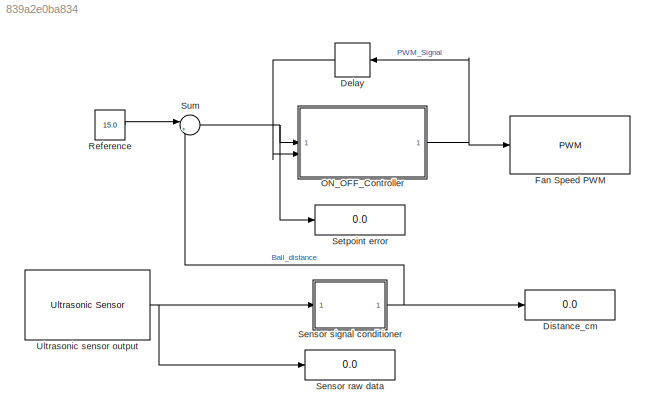
MODEL slx_839a2e0ba834
KIND model
CONFIG AbsTol = auto
CONFIG EnableMultiTasking = on
CONFIG FixedStep = 0.1
CONFIG MaxStep = auto
CONFIG MinStep = auto
CONFIG RelTol = 1e-3
CONFIG SampleTimeConstraint = Unconstrained
CONFIG SolverName = FixedStepDiscrete
CONFIG StartTime = 0.0
CONFIG StopTime = inf
BLOCK [Delay] Delay
  DelayLength = 1
  InputPortMap = u0
  NameLocation = top
BLOCK [Display] Distance_cm
  Decimation = 1
BLOCK [Reference] Fan Speed PWM  REF=arduinolib/PWM
  SourceBlock = arduinolib/PWM
  SourceType = Arduino PWM
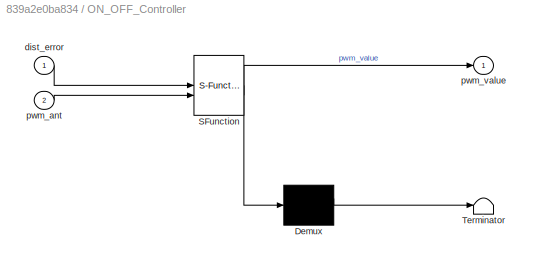
BLOCK [SubSystem] ON_OFF_Controller
  ErrorFcn = Stateflow.Translate.translate
  PermitHierarchicalResolution = ExplicitOnly
  SFBlockType = MATLAB Function
  TreatAsAtomicUnit = on
BLOCK [Demux] ON_OFF_Controller/ Demux 
  Outputs = 1
BLOCK [S-Function] ON_OFF_Controller/ SFunction 
  EnableBusSupport = on
  FunctionName = sf_sfun
  PortCounts = [2 2]
  SFcnIsStateOwnerBlock = off
  SFunctionDeploymentMode = off
  Tag = Stateflow S-Function 1
BLOCK [Terminator] ON_OFF_Controller/ Terminator 
BLOCK [Inport] ON_OFF_Controller/dist_error
BLOCK [Inport] ON_OFF_Controller/pwm_ant
  Port = 2
BLOCK [Outport] ON_OFF_Controller/pwm_value
BLOCK [Constant] Reference
  Value = 15.0
BLOCK [Display] Sensor raw data
  Decimation = 1
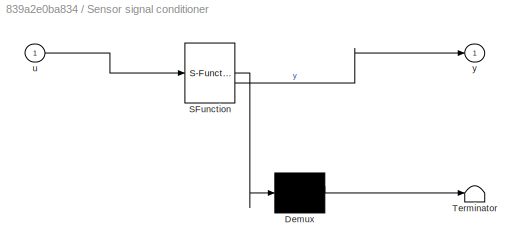
BLOCK [SubSystem] Sensor signal conditioner
  ErrorFcn = Stateflow.Translate.translate
  PermitHierarchicalResolution = ExplicitOnly
  SFBlockType = MATLAB Function
  TreatAsAtomicUnit = on
BLOCK [Demux] Sensor signal conditioner/ Demux 
  Outputs = 1
BLOCK [S-Function] Sensor signal conditioner/ SFunction 
  EnableBusSupport = on
  FunctionName = sf_sfun
  PortCounts = [1 2]
  SFcnIsStateOwnerBlock = off
  SFunctionDeploymentMode = off
  Tag = Stateflow S-Function 2
BLOCK [Terminator] Sensor signal conditioner/ Terminator 
BLOCK [Inport] Sensor signal conditioner/u
BLOCK [Outport] Sensor signal conditioner/y
BLOCK [Display] Setpoint error
  Decimation = 1
BLOCK [Sum] Sum
  Inputs = |+-
BLOCK [Reference] Ultrasonic sensor output  REF=arduinosensorlib/Ultrasonic Sensor
  SourceBlock = arduinosensorlib/Ultrasonic Sensor
  SourceType = Arduino Ultrasonic Sensor
LINE Delay:1 -> ON_OFF_Controller:2
NET ON_OFF_Controller:1 -> Delay:1, Fan Speed PWM:1
LINE Reference:1 -> Sum:1
NET Sensor signal conditioner:1 -> Distance_cm:1, Sum:2
NET Sum:1 -> ON_OFF_Controller:1, Setpoint error:1
NET Ultrasonic sensor output:1 -> Sensor raw data:1, Sensor signal conditioner:1
note: NET lines group one-source signal fan-out (src -> all destinations, sorted); 1:1 wires keep LINE
CHART Sensor signal conditioner states=1 transitions=1
  STATE_LABEL 'eML_blk_kernel()'
  STATE_LABEL 'SCRIPT:\nfunction y = fcn(u)\n\nMAX_DIST = 30;\n\ny=MAX_DIST-(u*100);'
CHART ON_OFF_Controller states=1 transitions=1
  STATE_LABEL 'eML_blk_kernel()'
  STATE_LABEL 'SCRIPT:\nfunction pwm_value = fcn(dist_error,pwm_ant)\n\nHYSTERESYS_STEP=2.0;\nOFF_MODE=82;\nON_MODE=182;\npwm_value=0;\n\n% Set the OFF mode if it is over the given setpoint\nif (dist_error >= HYSTERESYS_STEP)\n    pwm_value=ON_MODE;\n% Set the ON mode if it is below the given setpoint\nelseif (dist_error <= -HYSTERESYS_STEP)\n    pwm_value=OFF_MODE;\nelse\n    pwm_value=pwm_ant;\nend\n'
CHART  states=0 transitions=0
CHART  states=0 transitions=0
